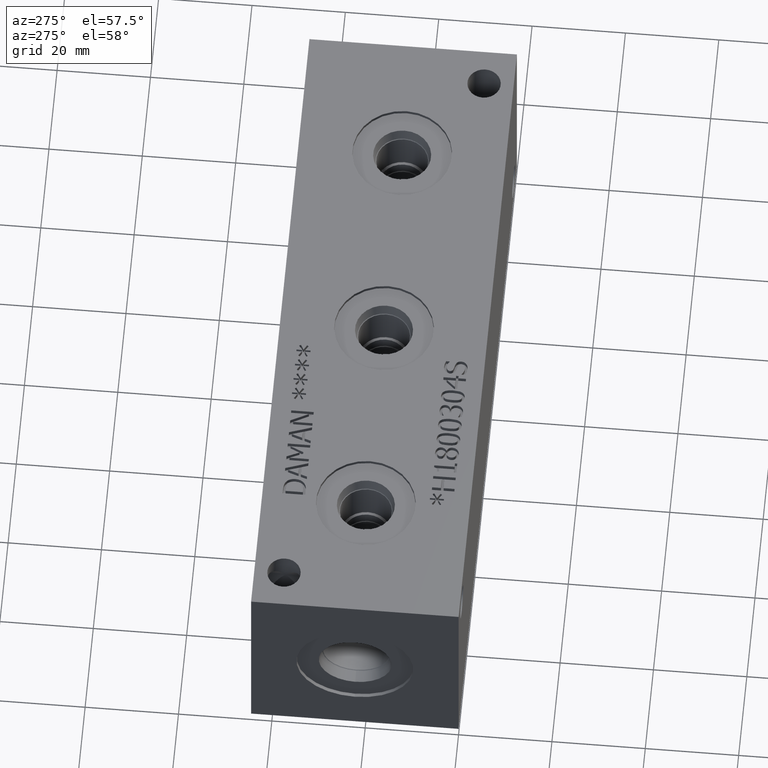
[diagram: clean part render]
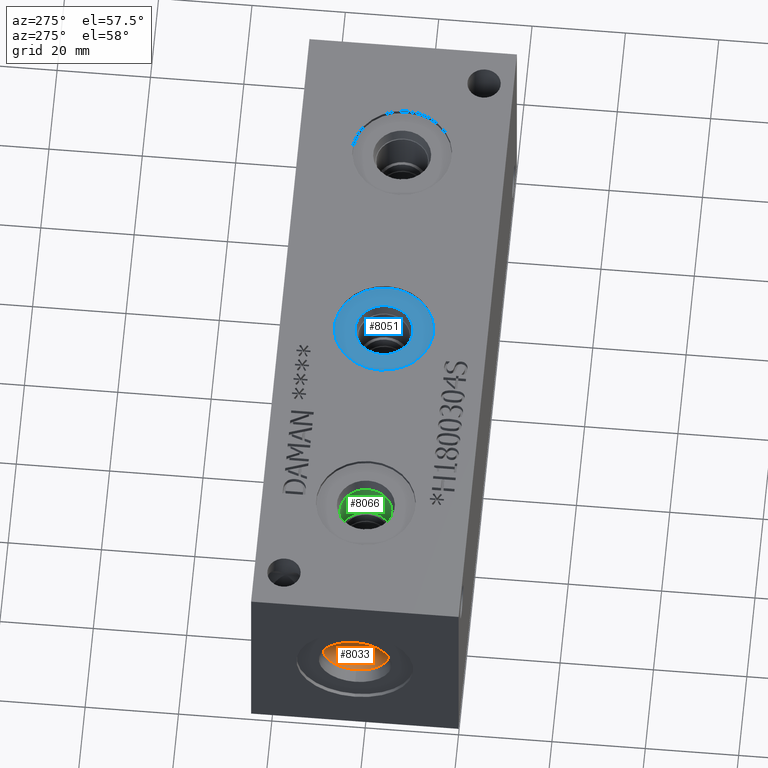
[diagram: same view with three faces highlighted in distinct colors, each labeled with its STEP entity id]
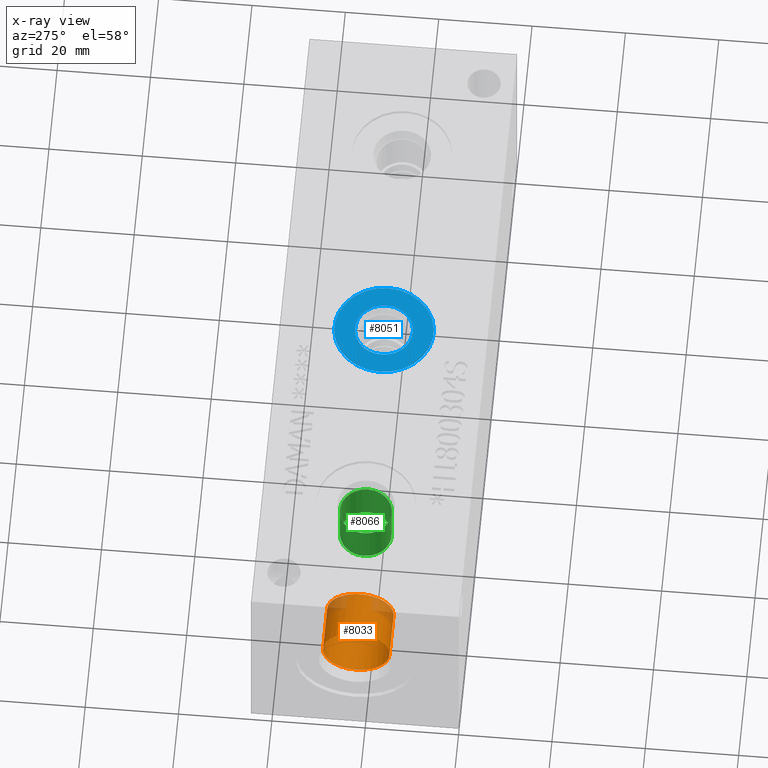
[diagram: x-ray of the same camera — body ghosted, the three highlighted faces saturated]
A machine part, auxiliary view with three faces highlighted in distinct colors.
The next image is the same camera in x-ray (body ghosted, the three faces saturated) — at least one of them is partly hidden behind the body in this view.
Their STEP definitions:

[orange] entity #8033 — the highlighted cylindrical surface (bore or boss wall) has radius 7.1374 mm, axis along (-1, 0, 0).
#72=CYLINDRICAL_SURFACE('',#8451,7.1374);
#182=CIRCLE('',#8448,7.1374);
#183=CIRCLE('',#8449,7.1374);
#185=CIRCLE('',#8452,7.1374);
#186=CIRCLE('',#8453,7.1374);
#970=FACE_OUTER_BOUND('',#1426,.T.);
#1426=EDGE_LOOP('',(#6846,#6847,#6848,#6849,#6850,#6851));
#2207=LINE('',#13621,#2965);
#2965=VECTOR('',#9999,7.1374);
#3686=VERTEX_POINT('',#13611);
#3687=VERTEX_POINT('',#13612);
#3689=VERTEX_POINT('',#13618);
#3690=VERTEX_POINT('',#13619);
#4761=EDGE_CURVE('',#3686,#3687,#182,.T.);
#4762=EDGE_CURVE('',#3687,#3686,#183,.T.);
#4764=EDGE_CURVE('',#3689,#3690,#185,.T.);
#4765=EDGE_CURVE('',#3689,#3687,#2207,.T.);
#4766=EDGE_CURVE('',#3690,#3689,#186,.T.);
#6846=ORIENTED_EDGE('',*,*,#4764,.F.);
#6847=ORIENTED_EDGE('',*,*,#4765,.T.);
#6848=ORIENTED_EDGE('',*,*,#4761,.F.);
#6849=ORIENTED_EDGE('',*,*,#4762,.F.);
#6850=ORIENTED_EDGE('',*,*,#4765,.F.);
#6851=ORIENTED_EDGE('',*,*,#4766,.F.);
#8033=ADVANCED_FACE('',(#970),#72,.F.);
#8448=AXIS2_PLACEMENT_3D('',#13613,#9989,#9990);
#8449=AXIS2_PLACEMENT_3D('',#13614,#9991,#9992);
#8451=AXIS2_PLACEMENT_3D('',#13617,#9995,#9996);
#8452=AXIS2_PLACEMENT_3D('',#13620,#9997,#9998);
#8453=AXIS2_PLACEMENT_3D('',#13622,#10000,#10001);
#9989=DIRECTION('center_axis',(-1.,0.,0.));
#9990=DIRECTION('ref_axis',(0.,1.,0.));
#9991=DIRECTION('center_axis',(-1.,0.,0.));
#9992=DIRECTION('ref_axis',(0.,1.,0.));
#9995=DIRECTION('center_axis',(-1.,0.,0.));
#9996=DIRECTION('ref_axis',(0.,1.,0.));
#9997=DIRECTION('center_axis',(1.,0.,0.));
#9998=DIRECTION('ref_axis',(0.,1.,0.));
#9999=DIRECTION('',(1.,0.,0.));
#10000=DIRECTION('center_axis',(1.,0.,0.));
#10001=DIRECTION('ref_axis',(0.,1.,0.));
#13611=CARTESIAN_POINT('',(13.4874,29.3624,22.225));
#13612=CARTESIAN_POINT('',(13.4874,15.0876,22.225));
#13613=CARTESIAN_POINT('Origin',(13.4874,22.225,22.225));
#13614=CARTESIAN_POINT('Origin',(13.4874,22.225,22.225));
#13617=CARTESIAN_POINT('Origin',(6.7437,22.225,22.225));
#13618=CARTESIAN_POINT('',(3.429,15.0876,22.225));
#13619=CARTESIAN_POINT('',(3.429,22.225,15.0876));
#13620=CARTESIAN_POINT('Origin',(3.429,22.225,22.225));
#13621=CARTESIAN_POINT('',(6.7437,15.0876,22.225));
#13622=CARTESIAN_POINT('Origin',(3.429,22.225,22.225));

[blue] entity #8051 — the highlighted planar face has unit normal (0, 0, -1).
#210=CIRCLE('',#8502,10.6426);
#211=CIRCLE('',#8503,10.6426);
#212=CIRCLE('',#8505,6.1976);
#213=CIRCLE('',#8506,6.1976);
#591=FACE_BOUND('',#1447,.T.);
#988=FACE_OUTER_BOUND('',#1446,.T.);
#1446=EDGE_LOOP('',(#6946,#6947));
#1447=EDGE_LOOP('',(#6948,#6949));
#3718=VERTEX_POINT('',#13712);
#3719=VERTEX_POINT('',#13714);
#3720=VERTEX_POINT('',#13718);
#3721=VERTEX_POINT('',#13719);
#4813=EDGE_CURVE('',#3718,#3719,#210,.T.);
#4814=EDGE_CURVE('',#3719,#3718,#211,.T.);
#4815=EDGE_CURVE('',#3720,#3721,#212,.T.);
#4816=EDGE_CURVE('',#3721,#3720,#213,.T.);
#6946=ORIENTED_EDGE('',*,*,#4814,.F.);
#6947=ORIENTED_EDGE('',*,*,#4813,.F.);
#6948=ORIENTED_EDGE('',*,*,#4815,.T.);
#6949=ORIENTED_EDGE('',*,*,#4816,.T.);
#7349=PLANE('',#8504);
#8051=ADVANCED_FACE('',(#988,#591),#7349,.F.);
#8502=AXIS2_PLACEMENT_3D('',#13715,#10113,#10114);
#8503=AXIS2_PLACEMENT_3D('',#13716,#10115,#10116);
#8504=AXIS2_PLACEMENT_3D('',#13717,#10117,#10118);
#8505=AXIS2_PLACEMENT_3D('',#13720,#10119,#10120);
#8506=AXIS2_PLACEMENT_3D('',#13721,#10121,#10122);
#10113=DIRECTION('center_axis',(0.,0.,-1.));
#10114=DIRECTION('ref_axis',(1.,0.,0.));
#10115=DIRECTION('center_axis',(0.,0.,-1.));
#10116=DIRECTION('ref_axis',(1.,0.,0.));
#10117=DIRECTION('center_axis',(0.,0.,-1.));
#10118=DIRECTION('ref_axis',(-1.,0.,0.));
#10119=DIRECTION('center_axis',(0.,0.,-1.));
#10120=DIRECTION('ref_axis',(1.,0.,0.));
#10121=DIRECTION('center_axis',(0.,0.,-1.));
#10122=DIRECTION('ref_axis',(1.,0.,0.));
#13712=CARTESIAN_POINT('',(60.7822,22.225,43.6626));
#13714=CARTESIAN_POINT('',(82.0674,22.225,43.6626));
#13715=CARTESIAN_POINT('Origin',(71.4248,22.225,43.6626));
#13716=CARTESIAN_POINT('Origin',(71.4248,22.225,43.6626));
#13717=CARTESIAN_POINT('Origin',(77.6224,22.225,43.6626));
#13718=CARTESIAN_POINT('',(77.6224,22.225,43.6626));
#13719=CARTESIAN_POINT('',(65.2272,22.225,43.6626));
#13720=CARTESIAN_POINT('Origin',(71.4248,22.225,43.6626));
#13721=CARTESIAN_POINT('Origin',(71.4248,22.225,43.6626));

[green] entity #8066 — the highlighted cylindrical surface (bore or boss wall) has radius 5.5626 mm, axis along (0, 0, 1).
#89=CYLINDRICAL_SURFACE('',#8543,5.5626);
#233=CIRCLE('',#8540,5.5626);
#234=CIRCLE('',#8541,5.5626);
#236=CIRCLE('',#8544,5.5626);
#1003=FACE_OUTER_BOUND('',#1464,.T.);
#1464=EDGE_LOOP('',(#7014,#7015,#7016,#7017,#7018));
#2235=LINE('',#13798,#2993);
#2993=VECTOR('',#10211,5.5626);
#3744=VERTEX_POINT('',#13789);
#3745=VERTEX_POINT('',#13790);
#3747=VERTEX_POINT('',#13796);
#4848=EDGE_CURVE('',#3744,#3745,#233,.T.);
#4849=EDGE_CURVE('',#3745,#3744,#234,.T.);
#4851=EDGE_CURVE('',#3747,#3747,#236,.T.);
#4852=EDGE_CURVE('',#3747,#3745,#2235,.T.);
#7014=ORIENTED_EDGE('',*,*,#4851,.F.);
#7015=ORIENTED_EDGE('',*,*,#4852,.T.);
#7016=ORIENTED_EDGE('',*,*,#4848,.F.);
#7017=ORIENTED_EDGE('',*,*,#4849,.F.);
#7018=ORIENTED_EDGE('',*,*,#4852,.F.);
#8066=ADVANCED_FACE('',(#1003),#89,.F.);
#8540=AXIS2_PLACEMENT_3D('',#13791,#10201,#10202);
#8541=AXIS2_PLACEMENT_3D('',#13792,#10203,#10204);
#8543=AXIS2_PLACEMENT_3D('',#13795,#10207,#10208);
#8544=AXIS2_PLACEMENT_3D('',#13797,#10209,#10210);
#10201=DIRECTION('center_axis',(0.,0.,1.));
#10202=DIRECTION('ref_axis',(1.,0.,0.));
#10203=DIRECTION('center_axis',(0.,0.,1.));
#10204=DIRECTION('ref_axis',(1.,0.,0.));
#10207=DIRECTION('center_axis',(0.,0.,1.));
#10208=DIRECTION('ref_axis',(1.,0.,0.));
#10209=DIRECTION('center_axis',(0.,0.,-1.));
#10210=DIRECTION('ref_axis',(1.,0.,0.));
#10211=DIRECTION('',(0.,0.,-1.));
#13789=CARTESIAN_POINT('',(32.5374,22.225,32.1564));
#13790=CARTESIAN_POINT('',(21.4122,22.225,32.1564));
#13791=CARTESIAN_POINT('Origin',(26.9748,22.225,32.1564));
#13792=CARTESIAN_POINT('Origin',(26.9748,22.225,32.1564));
#13795=CARTESIAN_POINT('Origin',(26.9748,22.225,38.3032));
#13796=CARTESIAN_POINT('',(21.4122,22.225,41.1457004022321));
#13797=CARTESIAN_POINT('Origin',(26.9748,22.225,41.1457004022321));
#13798=CARTESIAN_POINT('',(21.4122,22.225,38.3032));